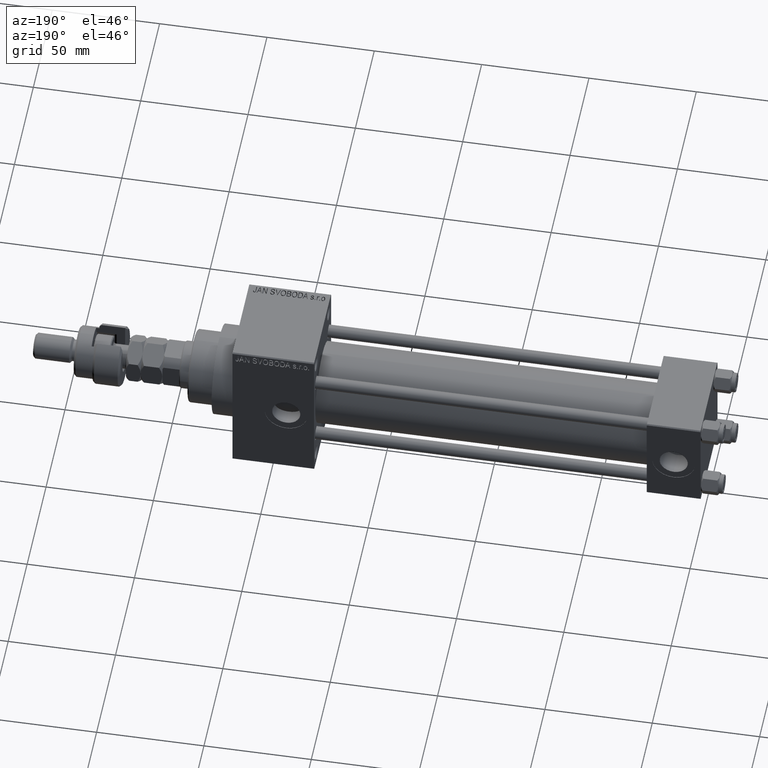
[diagram: clean part render]
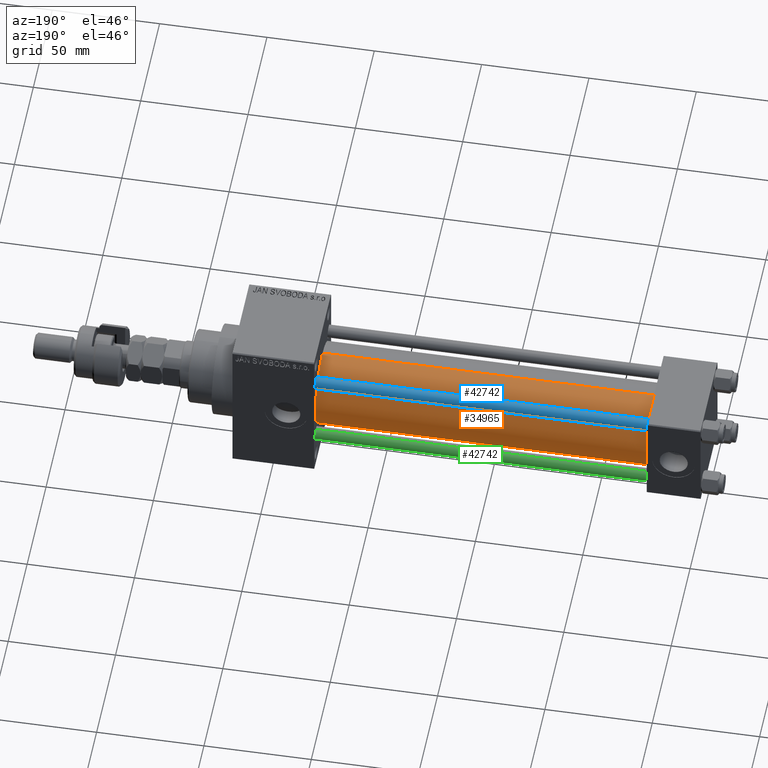
[diagram: same view with three faces highlighted in distinct colors, each labeled with its STEP entity id]
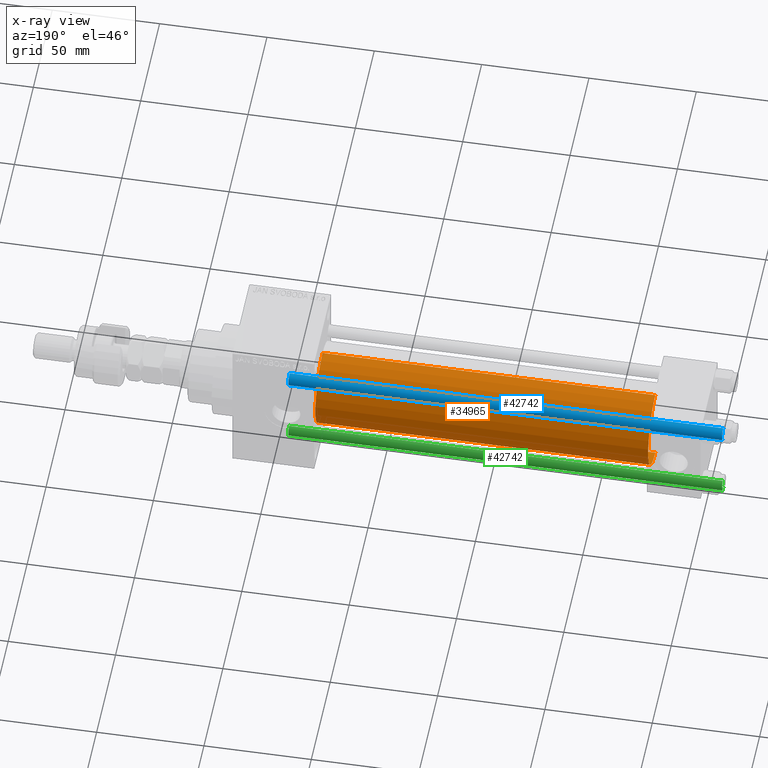
[diagram: x-ray of the same camera — body ghosted, the three highlighted faces saturated]
A machine part, auxiliary view with three faces highlighted in distinct colors.
The next image is the same camera in x-ray (body ghosted, the three faces saturated) — at least one of them is partly hidden behind the body in this view.
Their STEP definitions:

[orange] entity #34965 — the highlighted cylindrical surface (partial cylindrical patch) has radius 19 mm, axis along (-1, -0, -0).
#793 = DIRECTION ( 'NONE',  ( 0.000000000000000000, 0.000000000000000000, -1.000000000000000000 ) ) ;
#2710 = VERTEX_POINT ( 'NONE', #15146 ) ;
#6041 = DIRECTION ( 'NONE',  ( -1.000000000000000000, -0.000000000000000000, -0.000000000000000000 ) ) ;
#6109 = VECTOR ( 'NONE', #10739, 1000.000000000000000 ) ;
#7953 = ORIENTED_EDGE ( 'NONE', *, *, #28537, .F. ) ;
#8283 = EDGE_CURVE ( 'NONE', #33399, #39369, #50099, .T. ) ;
#8924 = LINE ( 'NONE', #40929, #43364 ) ;
#8997 = DIRECTION ( 'NONE',  ( 0.000000000000000000, 0.000000000000000000, 1.000000000000000000 ) ) ;
#9711 = CARTESIAN_POINT ( 'NONE',  ( 180.0000000000000000, -2.602085213965210642E-15, 0.000000000000000000 ) ) ;
#10739 = DIRECTION ( 'NONE',  ( -1.000000000000000000, -0.000000000000000000, -0.000000000000000000 ) ) ;
#12906 = EDGE_LOOP ( 'NONE', ( #7953, #29238, #16016, #18502 ) ) ;
#14031 = VERTEX_POINT ( 'NONE', #39689 ) ;
#15146 = CARTESIAN_POINT ( 'NONE',  ( 24.99999999999999289, -2.602085213965210642E-15, 19.00000000000000000 ) ) ;
#16016 = ORIENTED_EDGE ( 'NONE', *, *, #50948, .T. ) ;
#16824 = CIRCLE ( 'NONE', #29357, 19.00000000000000000 ) ;
#17347 = CYLINDRICAL_SURFACE ( 'NONE', #22468, 19.00000000000000000 ) ;
#18502 = ORIENTED_EDGE ( 'NONE', *, *, #32950, .F. ) ;
#22468 = AXIS2_PLACEMENT_3D ( 'NONE', #33603, #6041, #25727 ) ;
#25727 = DIRECTION ( 'NONE',  ( 0.000000000000000000, 0.000000000000000000, 1.000000000000000000 ) ) ;
#26312 = AXIS2_PLACEMENT_3D ( 'NONE', #48121, #44949, #8997 ) ;
#28537 = EDGE_CURVE ( 'NONE', #33399, #14031, #16824, .T. ) ;
#29238 = ORIENTED_EDGE ( 'NONE', *, *, #8283, .T. ) ;
#29357 = AXIS2_PLACEMENT_3D ( 'NONE', #9711, #41465, #793 ) ;
#31328 = CARTESIAN_POINT ( 'NONE',  ( 180.0000000000000000, -2.752562955852396712E-16, -19.00000000000000000 ) ) ;
#32950 = EDGE_CURVE ( 'NONE', #14031, #2710, #8924, .T. ) ;
#33028 = CARTESIAN_POINT ( 'NONE',  ( 24.99999999999999289, -2.752562955852396712E-16, -19.00000000000000000 ) ) ;
#33399 = VERTEX_POINT ( 'NONE', #31328 ) ;
#33603 = CARTESIAN_POINT ( 'NONE',  ( 180.0000000000000000, -2.602085213965210642E-15, 0.000000000000000000 ) ) ;
#33839 = CARTESIAN_POINT ( 'NONE',  ( 180.0000000000000000, -2.752562955852396712E-16, -19.00000000000000000 ) ) ;
#34965 = ADVANCED_FACE ( 'NONE', ( #50391 ), #17347, .T. ) ;
#37261 = DIRECTION ( 'NONE',  ( -1.000000000000000000, -0.000000000000000000, -0.000000000000000000 ) ) ;
#39369 = VERTEX_POINT ( 'NONE', #33028 ) ;
#39689 = CARTESIAN_POINT ( 'NONE',  ( 180.0000000000000000, -2.602085213965210642E-15, 19.00000000000000000 ) ) ;
#40929 = CARTESIAN_POINT ( 'NONE',  ( 180.0000000000000000, -2.602085213965210642E-15, 19.00000000000000000 ) ) ;
#41465 = DIRECTION ( 'NONE',  ( 1.000000000000000000, 0.000000000000000000, 0.000000000000000000 ) ) ;
#43364 = VECTOR ( 'NONE', #37261, 1000.000000000000000 ) ;
#44949 = DIRECTION ( 'NONE',  ( 1.000000000000000000, -0.000000000000000000, 0.000000000000000000 ) ) ;
#48121 = CARTESIAN_POINT ( 'NONE',  ( 24.99999999999999289, -2.602085213965210642E-15, 0.000000000000000000 ) ) ;
#50099 = LINE ( 'NONE', #33839, #6109 ) ;
#50391 = FACE_OUTER_BOUND ( 'NONE', #12906, .T. ) ;
#50628 = CIRCLE ( 'NONE', #26312, 19.00000000000000000 ) ;
#50948 = EDGE_CURVE ( 'NONE', #39369, #2710, #50628, .T. ) ;

[blue] entity #42742 — the highlighted cylindrical surface (edge-blend (fillet) strip) has radius 3 mm, axis along (-1, -0, 0).
#642 = VERTEX_POINT ( 'NONE', #9997 ) ;
#3205 = DIRECTION ( 'NONE',  ( 1.000000000000000000, 0.000000000000000000, 0.000000000000000000 ) ) ;
#3462 = CARTESIAN_POINT ( 'NONE',  ( 3.000000000000000444, 3.673940397442059868E-16, 203.0000000000000000 ) ) ;
#5133 = ORIENTED_EDGE ( 'NONE', *, *, #29396, .T. ) ;
#7564 = ORIENTED_EDGE ( 'NONE', *, *, #15196, .T. ) ;
#8779 = CARTESIAN_POINT ( 'NONE',  ( -3.000000000000000444, 0.000000000000000000, 0.5000000000001114664 ) ) ;
#9997 = CARTESIAN_POINT ( 'NONE',  ( 3.000000000000000444, 3.673940397442059868E-16, 202.5000000000000853 ) ) ;
#10560 = DIRECTION ( 'NONE',  ( 0.000000000000000000, 0.000000000000000000, -1.000000000000000000 ) ) ;
#10998 = FACE_OUTER_BOUND ( 'NONE', #26668, .T. ) ;
#11260 = DIRECTION ( 'NONE',  ( -1.000000000000000000, 0.000000000000000000, 0.000000000000000000 ) ) ;
#11665 = VERTEX_POINT ( 'NONE', #13827 ) ;
#12660 = CARTESIAN_POINT ( 'NONE',  ( -3.000000000000000444, 0.000000000000000000, 203.0000000000000000 ) ) ;
#13827 = CARTESIAN_POINT ( 'NONE',  ( 3.000000000000000444, 3.673940397442059868E-16, 0.5000000000001114664 ) ) ;
#15196 = EDGE_CURVE ( 'NONE', #642, #11665, #39415, .T. ) ;
#16031 = AXIS2_PLACEMENT_3D ( 'NONE', #51538, #31857, #23732 ) ;
#19646 = CYLINDRICAL_SURFACE ( 'NONE', #41216, 3.000000000000000444 ) ;
#22739 = ORIENTED_EDGE ( 'NONE', *, *, #25389, .F. ) ;
#23688 = CIRCLE ( 'NONE', #51329, 3.000000000000000444 ) ;
#23732 = DIRECTION ( 'NONE',  ( 1.000000000000000000, 0.000000000000000000, 0.000000000000000000 ) ) ;
#25389 = EDGE_CURVE ( 'NONE', #37449, #45590, #28650, .T. ) ;
#26668 = EDGE_LOOP ( 'NONE', ( #34104, #7564, #5133, #22739 ) ) ;
#27251 = DIRECTION ( 'NONE',  ( -0.000000000000000000, -0.000000000000000000, -1.000000000000000000 ) ) ;
#28650 = LINE ( 'NONE', #12660, #35962 ) ;
#29393 = CIRCLE ( 'NONE', #16031, 3.000000000000000444 ) ;
#29396 = EDGE_CURVE ( 'NONE', #11665, #45590, #29393, .T. ) ;
#31857 = DIRECTION ( 'NONE',  ( -0.000000000000000000, -0.000000000000000000, 1.000000000000000000 ) ) ;
#31877 = CARTESIAN_POINT ( 'NONE',  ( -3.000000000000000444, 0.000000000000000000, 202.5000000000000853 ) ) ;
#34104 = ORIENTED_EDGE ( 'NONE', *, *, #47749, .T. ) ;
#35393 = CARTESIAN_POINT ( 'NONE',  ( 0.000000000000000000, 0.000000000000000000, 203.0000000000000000 ) ) ;
#35962 = VECTOR ( 'NONE', #51748, 1000.000000000000000 ) ;
#37449 = VERTEX_POINT ( 'NONE', #31877 ) ;
#39409 = CARTESIAN_POINT ( 'NONE',  ( 0.000000000000000000, 0.000000000000000000, 202.5000000000000853 ) ) ;
#39415 = LINE ( 'NONE', #3462, #45749 ) ;
#41216 = AXIS2_PLACEMENT_3D ( 'NONE', #35393, #27251, #11260 ) ;
#42742 = ADVANCED_FACE ( 'NONE', ( #10998 ), #19646, .T. ) ;
#45590 = VERTEX_POINT ( 'NONE', #8779 ) ;
#45749 = VECTOR ( 'NONE', #47557, 1000.000000000000000 ) ;
#47557 = DIRECTION ( 'NONE',  ( -0.000000000000000000, -0.000000000000000000, -1.000000000000000000 ) ) ;
#47749 = EDGE_CURVE ( 'NONE', #37449, #642, #23688, .T. ) ;
#51329 = AXIS2_PLACEMENT_3D ( 'NONE', #39409, #10560, #3205 ) ;
#51538 = CARTESIAN_POINT ( 'NONE',  ( 0.000000000000000000, 0.000000000000000000, 0.5000000000001114664 ) ) ;
#51748 = DIRECTION ( 'NONE',  ( -0.000000000000000000, -0.000000000000000000, -1.000000000000000000 ) ) ;

[green] entity #42742 — the highlighted cylindrical surface (edge-blend (fillet) strip) has radius 3 mm, axis along (1, -0, 0).
#642 = VERTEX_POINT ( 'NONE', #9997 ) ;
#3205 = DIRECTION ( 'NONE',  ( 1.000000000000000000, 0.000000000000000000, 0.000000000000000000 ) ) ;
#3462 = CARTESIAN_POINT ( 'NONE',  ( 3.000000000000000444, 3.673940397442059868E-16, 203.0000000000000000 ) ) ;
#5133 = ORIENTED_EDGE ( 'NONE', *, *, #29396, .T. ) ;
#7564 = ORIENTED_EDGE ( 'NONE', *, *, #15196, .T. ) ;
#8779 = CARTESIAN_POINT ( 'NONE',  ( -3.000000000000000444, 0.000000000000000000, 0.5000000000001114664 ) ) ;
#9997 = CARTESIAN_POINT ( 'NONE',  ( 3.000000000000000444, 3.673940397442059868E-16, 202.5000000000000853 ) ) ;
#10560 = DIRECTION ( 'NONE',  ( 0.000000000000000000, 0.000000000000000000, -1.000000000000000000 ) ) ;
#10998 = FACE_OUTER_BOUND ( 'NONE', #26668, .T. ) ;
#11260 = DIRECTION ( 'NONE',  ( -1.000000000000000000, 0.000000000000000000, 0.000000000000000000 ) ) ;
#11665 = VERTEX_POINT ( 'NONE', #13827 ) ;
#12660 = CARTESIAN_POINT ( 'NONE',  ( -3.000000000000000444, 0.000000000000000000, 203.0000000000000000 ) ) ;
#13827 = CARTESIAN_POINT ( 'NONE',  ( 3.000000000000000444, 3.673940397442059868E-16, 0.5000000000001114664 ) ) ;
#15196 = EDGE_CURVE ( 'NONE', #642, #11665, #39415, .T. ) ;
#16031 = AXIS2_PLACEMENT_3D ( 'NONE', #51538, #31857, #23732 ) ;
#19646 = CYLINDRICAL_SURFACE ( 'NONE', #41216, 3.000000000000000444 ) ;
#22739 = ORIENTED_EDGE ( 'NONE', *, *, #25389, .F. ) ;
#23688 = CIRCLE ( 'NONE', #51329, 3.000000000000000444 ) ;
#23732 = DIRECTION ( 'NONE',  ( 1.000000000000000000, 0.000000000000000000, 0.000000000000000000 ) ) ;
#25389 = EDGE_CURVE ( 'NONE', #37449, #45590, #28650, .T. ) ;
#26668 = EDGE_LOOP ( 'NONE', ( #34104, #7564, #5133, #22739 ) ) ;
#27251 = DIRECTION ( 'NONE',  ( -0.000000000000000000, -0.000000000000000000, -1.000000000000000000 ) ) ;
#28650 = LINE ( 'NONE', #12660, #35962 ) ;
#29393 = CIRCLE ( 'NONE', #16031, 3.000000000000000444 ) ;
#29396 = EDGE_CURVE ( 'NONE', #11665, #45590, #29393, .T. ) ;
#31857 = DIRECTION ( 'NONE',  ( -0.000000000000000000, -0.000000000000000000, 1.000000000000000000 ) ) ;
#31877 = CARTESIAN_POINT ( 'NONE',  ( -3.000000000000000444, 0.000000000000000000, 202.5000000000000853 ) ) ;
#34104 = ORIENTED_EDGE ( 'NONE', *, *, #47749, .T. ) ;
#35393 = CARTESIAN_POINT ( 'NONE',  ( 0.000000000000000000, 0.000000000000000000, 203.0000000000000000 ) ) ;
#35962 = VECTOR ( 'NONE', #51748, 1000.000000000000000 ) ;
#37449 = VERTEX_POINT ( 'NONE', #31877 ) ;
#39409 = CARTESIAN_POINT ( 'NONE',  ( 0.000000000000000000, 0.000000000000000000, 202.5000000000000853 ) ) ;
#39415 = LINE ( 'NONE', #3462, #45749 ) ;
#41216 = AXIS2_PLACEMENT_3D ( 'NONE', #35393, #27251, #11260 ) ;
#42742 = ADVANCED_FACE ( 'NONE', ( #10998 ), #19646, .T. ) ;
#45590 = VERTEX_POINT ( 'NONE', #8779 ) ;
#45749 = VECTOR ( 'NONE', #47557, 1000.000000000000000 ) ;
#47557 = DIRECTION ( 'NONE',  ( -0.000000000000000000, -0.000000000000000000, -1.000000000000000000 ) ) ;
#47749 = EDGE_CURVE ( 'NONE', #37449, #642, #23688, .T. ) ;
#51329 = AXIS2_PLACEMENT_3D ( 'NONE', #39409, #10560, #3205 ) ;
#51538 = CARTESIAN_POINT ( 'NONE',  ( 0.000000000000000000, 0.000000000000000000, 0.5000000000001114664 ) ) ;
#51748 = DIRECTION ( 'NONE',  ( -0.000000000000000000, -0.000000000000000000, -1.000000000000000000 ) ) ;